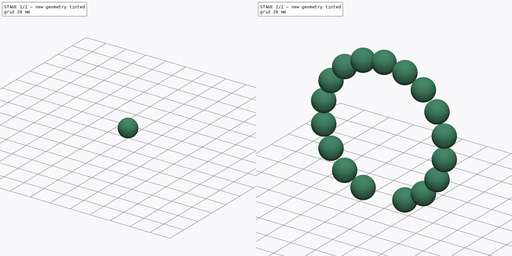
[diagram: build sequence overview — one tinted view per stage of 2, left to right]
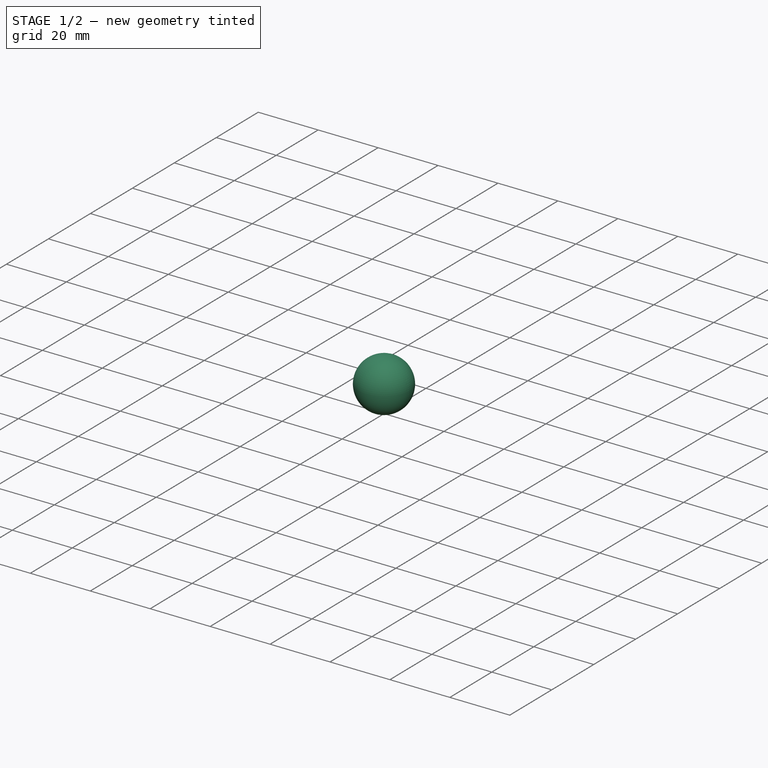
[diagram: stage 1 of 2 — iso view after this stage's code; geometry added in this stage tinted green]
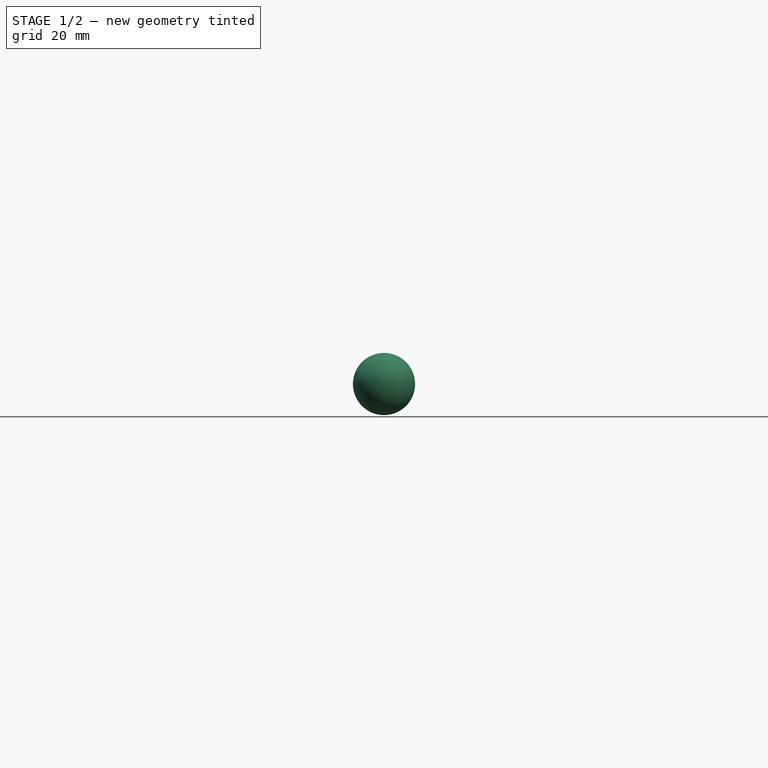
[diagram: stage 1 of 2 — front view after this stage's code; geometry added in this stage tinted green]
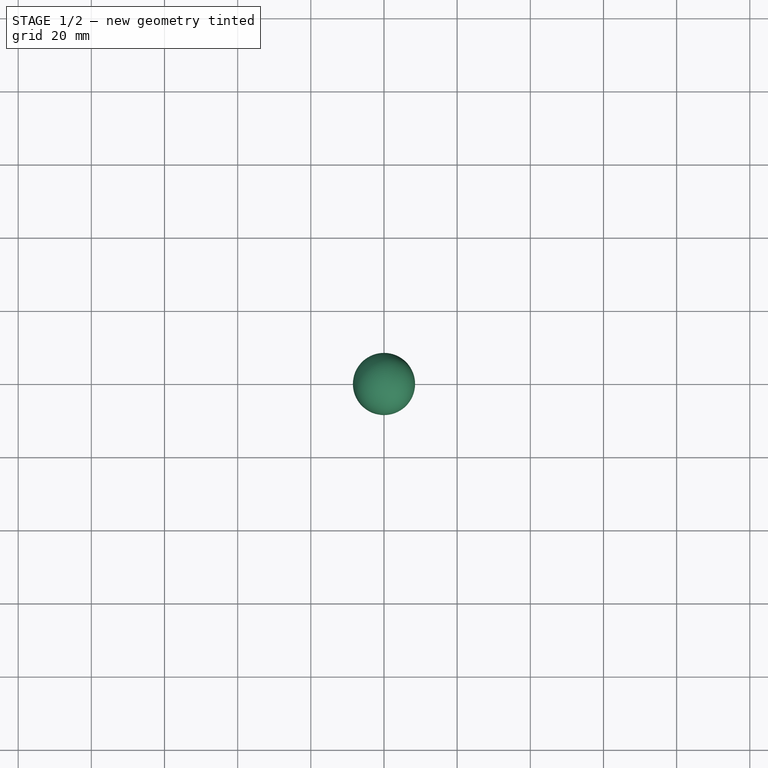
[diagram: stage 1 of 2 — top view after this stage's code; geometry added in this stage tinted green]
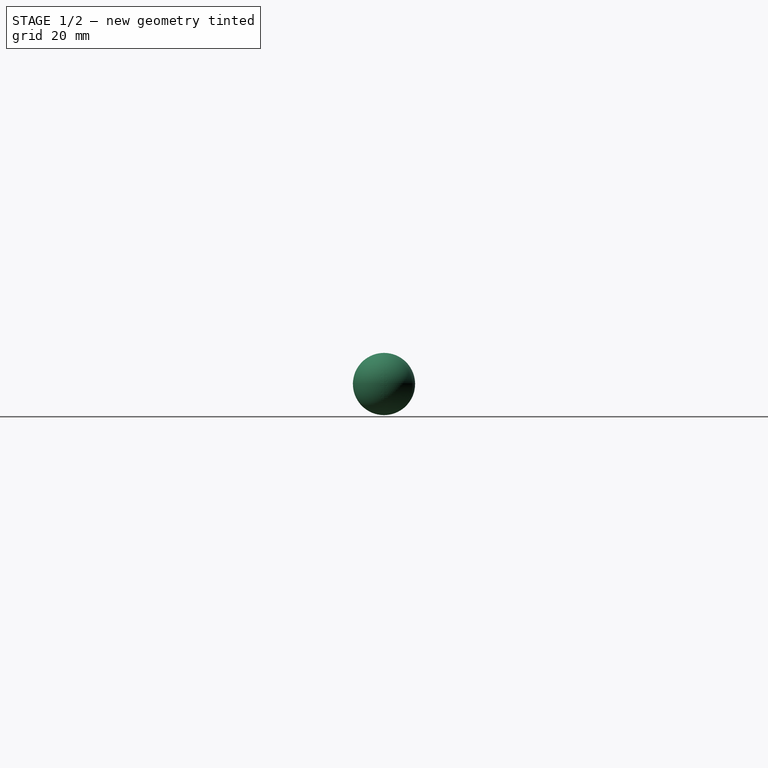
[diagram: stage 1 of 2 — right view after this stage's code; geometry added in this stage tinted green]
FCSTD DOCUMENT  (FreeCAD 0.21R33771 (Git))
Label: beerinwheel
License: All rights reserved
LicenseURL: http://en.wikipedia.org/wiki/All_rights_reserved
objects: Sketcher::SketchObject×2, Spreadsheet::Sheet×1, Part::Sphere×1, Part::FeaturePython×1, Part::Revolution×1, Part::Fillet×1
note: 6 computed .brp shape members not serialized (recipe doc carries the construction recipe); baked Part::Feature solids carry a one-line shape summary decoded from their .brp

FEATURE [Spreadsheet::Sheet] Spreadsheet  label="dimensions"
  cells = A2='OR; B2(OR)=60; A3='IR; B3(IR)=40; A4='Width; B4(width)=20; A5='wt; B5(wt)==shoulder; D5='wall thickness. The closest ; A6='c; B6(c)==(width - shoulder) / 2; D6='This computed from the parameters.  it represent the center of the circle of the pathway.; A7='pathradius; B7(pathradius)==(OR + IR) / 2; D7='computed; A8='shoulder; B8(shoulder)=2.5; A9='tolerance; B9(tolerance)=0.25; A10='BR; B10(BR)==c - tolerance; D10='computed.  Ball radius; A11='NB; B11(NB)==trunc(2 * pi * pathradius / (2 * BR + tolerance))
FEATURE [Sketcher::SketchObject] Sketch002  label="crosssection"
  FullyConstrained = true
  expr: Constraints[15] = <<dimensions>>.width
  expr: Constraints[16] = <<dimensions>>.OR
  expr: Constraints[17] = <<dimensions>>.IR
  expr: Constraints[30] = <<dimensions>>.c
  expr: Constraints[36] = <<dimensions>>.shoulder
  sketch-geometry (13):
    g0: LineSegment StartX=54.5069 StartY=10 StartZ=0 EndX=60 EndY=10 EndZ=0
    g1: LineSegment StartX=60 StartY=10 StartZ=0 EndX=60 EndY=-10 EndZ=0
    g2: LineSegment StartX=60 StartY=-10 StartZ=0 EndX=54.5069 EndY=-10 EndZ=0
    g3: GeomPoint X=57.2535 Y=0 Z=0
    g4: LineSegment StartX=40 StartY=-10 StartZ=0 EndX=40 EndY=10 EndZ=0
    g5: LineSegment StartX=40 StartY=10 StartZ=0 EndX=45.4931 EndY=10 EndZ=0
    g6: LineSegment StartX=45.4931 StartY=-10 StartZ=0 EndX=40 EndY=-10 EndZ=0
    g7: GeomPoint X=42.7465 Y=0 Z=0
    g8: LineSegment StartX=45.4931 StartY=10 StartZ=0 EndX=45.4931 EndY=7.5 EndZ=0
    g9: LineSegment StartX=45.4931 StartY=-10 StartZ=0 EndX=45.4931 EndY=-7.5 EndZ=0
    g10: LineSegment StartX=54.5069 StartY=10 StartZ=0 EndX=54.5069 EndY=7.5 EndZ=0
    g11: LineSegment StartX=54.5069 StartY=-10 StartZ=0 EndX=54.5069 EndY=-7.5 EndZ=0
    g12: Circle CenterX=50 CenterY=0 CenterZ=0 NormalX=0 NormalY=0 NormalZ=1 AngleXU=0 Radius=8.75
  constraints (37):
    c: Coincident(g0,g1)
    c: Coincident(g1,g2)
    c: Horizontal(g0)
    c: Horizontal(g2)
    c: Vertical(g1)
    c: Symmetric(g0,g2,g3)
    c: PointOnObject(g3,g-1)
    c: Coincident(g4,g5)
    c: Coincident(g6,g4)
    c: Horizontal(g5)
    c: Horizontal(g6)
    c: Vertical(g4)
    c: Symmetric(g5,g4,g7)
    c: PointOnObject(g7,g-1)
    c: Equal(g5,g0)
    c: DistanceY(g1,g1) = 20
    c: DistanceX(g1) = 60
    c: DistanceX(g4) = 40
    c: Coincident(g8,g5)
    c: Vertical(g8)
    c: Coincident(g9,g6)
    c: Vertical(g9)
    c: Coincident(g10,g0)
    c: Vertical(g10)
    c: Coincident(g11,g2)
    c: Vertical(g11)
    c: Equal(g4,g1)
    c: Equal(g5,g6)
    c: Equal(g2,g0)
    c: PointOnObject(g12,g-1)
    c: Radius(g12) = 8.75
    c: PointOnObject(g9,g12)
    c: PointOnObject(g11,g12)
    c: Equal(g11,g9)
    c: Equal(g9,g8)
    c: Equal(g8,g10)
    c: DistanceY(g11,g11) = 2.5
FEATURE [Part::Sphere] Sphere
  Angle1 = -90
  Angle2 = 90
  Angle3 = 360
  AttacherType = Attacher::AttachEngine3D
  Placement = pos=(0,0,-50) rot=(0,0,1;0rad)
  Radius = 8.5
  expr: .Placement.Base.x = 0
  expr: .Placement.Base.z = -<<dimensions>>.pathradius
  expr: Radius = <<dimensions>>.BR
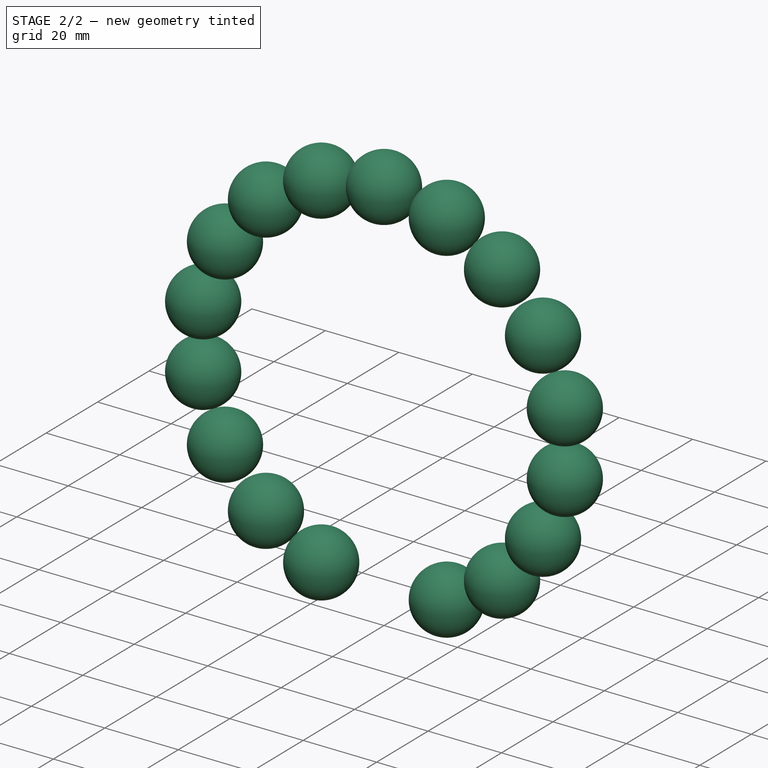
[diagram: stage 2 of 2 — iso view after this stage's code; geometry added in this stage tinted green]
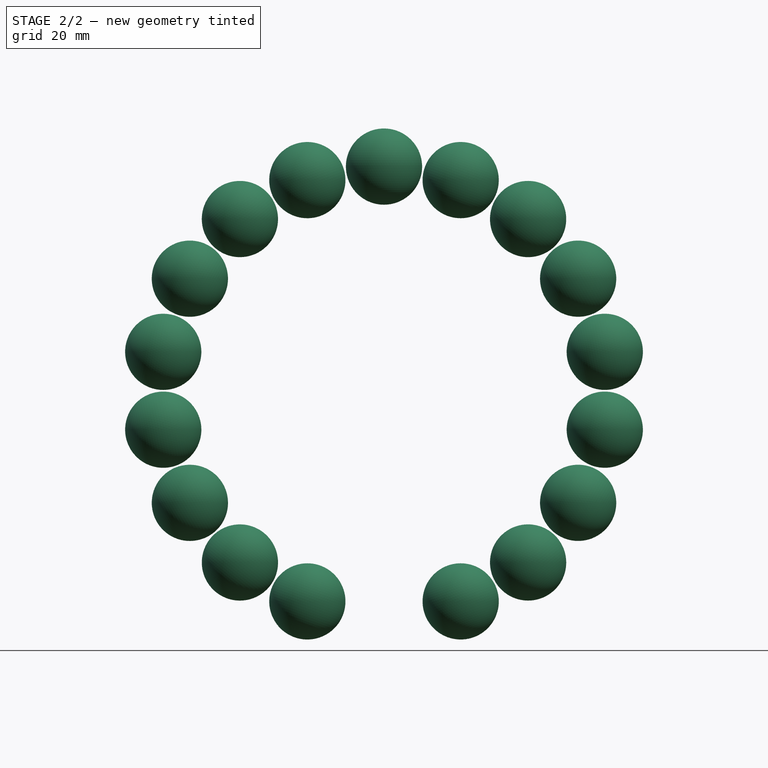
[diagram: stage 2 of 2 — front view after this stage's code; geometry added in this stage tinted green]
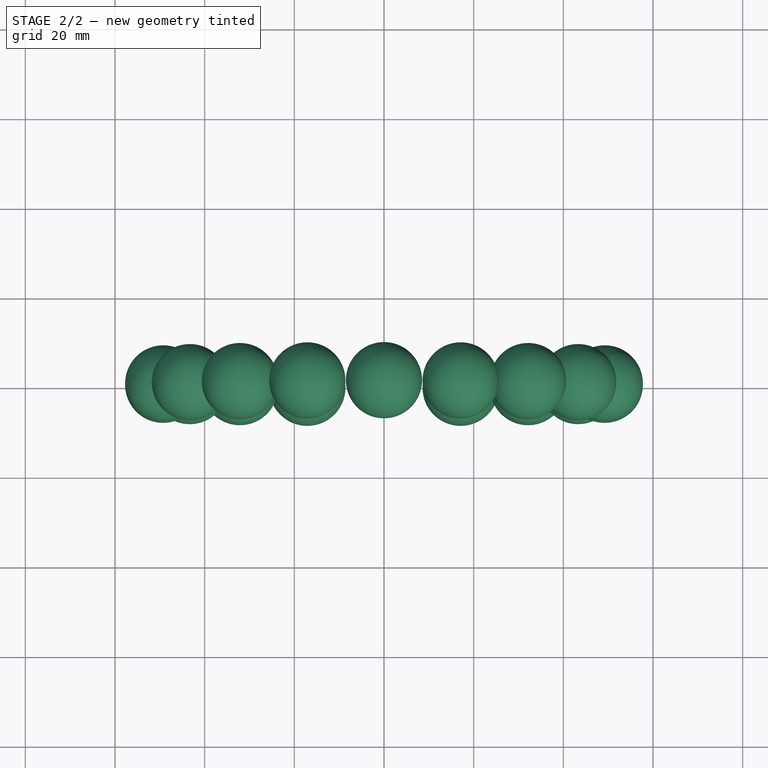
[diagram: stage 2 of 2 — top view after this stage's code; geometry added in this stage tinted green]
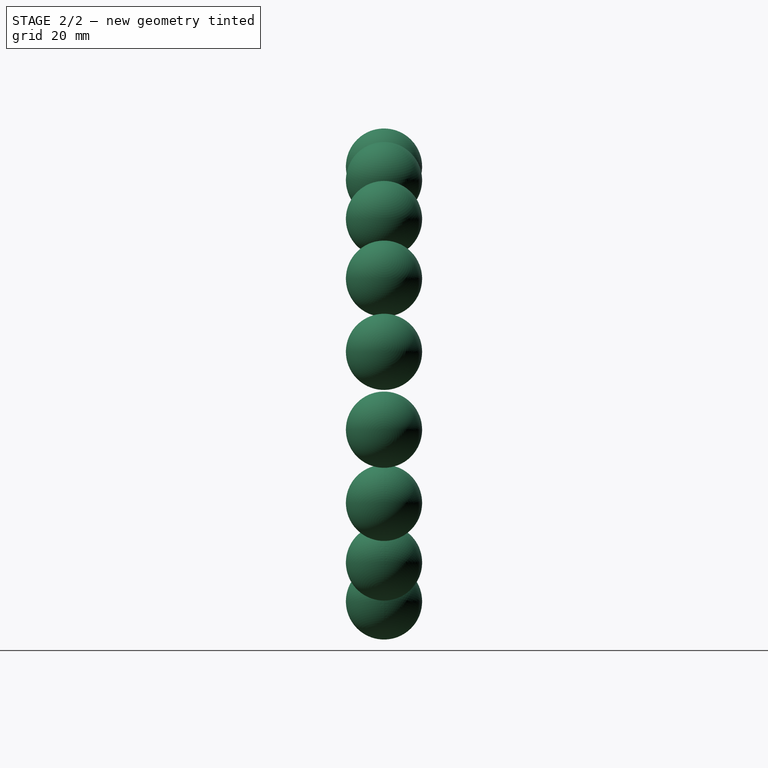
[diagram: stage 2 of 2 — right view after this stage's code; geometry added in this stage tinted green]
FEATURE [Part::FeaturePython] Array  label="balls"  # Draft array (typed FeaturePython)
  AlwaysSyncPlacement = false
  Angle = 360
  ArrayType = 1
  Axis = (0,1,0)
  Base = -> Sphere
  Center = (0,1,0)
  Count = 18
  ExpandArray = false
  Fuse = true
  IntervalAxis = (0,0,0)
  IntervalX = (50,0,0)
  IntervalY = (0,50,0)
  IntervalZ = (0,0,50)
  NumberCircles = 3
  NumberPolar = 18
  NumberX = 2
  NumberY = 2
  NumberZ = 1
  PlacementList = 18 placements: [(0,0,-50),(-17.101,1.11022e-16,-46.9846),(-32.1394,0,-38.3022),(-43.3013,0,-25),(-49.2404,1.11022e-16,-8.68241),(-49.2404,0,8.68241),(-43.3013,0,25),(-32.1394,1.11022e-16,38.3022),(-17.101,1.11022e-16,46.9846),(-6.12323e-15,0,50),(17.101,1.11022e-16,46.9846),(32.1394,0,38.3022),(43.3013,1.11022e-16,25),(49.2404,0,8.68241),(49.2404,0,-8.68241),(43.3013,0,-25),(32.1394,1.11022e-16,-38.3022),+1 more]
  RadialDistance = 50
  ScaleList = (18) [(1,1,1),(1,1,1),(1,1,1),(1,1,1),(1,1,1),(1,1,1),(1,1,1),(1,1,1),(1,1,1),(1,1,1),(1,1,1),(1,1,1),(1,1,1),(1,1,1),(1,1,1),(1,1,1),(1,1,1),(1,1,1)]
  Symmetry = 1
  TangentialDistance = 25
  expr: NumberPolar = <<dimensions>>.NB
FEATURE [Sketcher::SketchObject] Sketch004  label="crosssection002"
  FullyConstrained = true
  expr: Constraints[15] = <<dimensions>>.width
  expr: Constraints[16] = <<dimensions>>.OR
  expr: Constraints[17] = <<dimensions>>.IR
  expr: Constraints[30] = <<dimensions>>.width / 2 - <<dimensions>>.shoulder / 2
  expr: Constraints[33] = <<dimensions>>.shoulder
  sketch-geometry (14):
    g0: LineSegment StartX=54.5069 StartY=10 StartZ=0 EndX=60 EndY=10 EndZ=0
    g1: LineSegment StartX=60 StartY=10 StartZ=0 EndX=60 EndY=-10 EndZ=0
    g2: LineSegment StartX=60 StartY=-10 StartZ=0 EndX=54.5069 EndY=-10 EndZ=0
    g3: GeomPoint X=57.2535 Y=0 Z=0
    g4: LineSegment StartX=40 StartY=-10 StartZ=0 EndX=40 EndY=10 EndZ=0
    g5: LineSegment StartX=40 StartY=10 StartZ=0 EndX=45.4931 EndY=10 EndZ=0
    g6: LineSegment StartX=45.4931 StartY=-10 StartZ=0 EndX=40 EndY=-10 EndZ=0
    g7: GeomPoint X=42.7465 Y=0 Z=0
    g8: LineSegment StartX=45.4931 StartY=10 StartZ=0 EndX=45.4931 EndY=7.5 EndZ=0
    g9: LineSegment StartX=45.4931 StartY=-10 StartZ=0 EndX=45.4931 EndY=-7.5 EndZ=0
    g10: LineSegment StartX=54.5069 StartY=10 StartZ=0 EndX=54.5069 EndY=7.5 EndZ=0
    g11: LineSegment StartX=54.5069 StartY=-10 StartZ=0 EndX=54.5069 EndY=-7.5 EndZ=0
    g12: ArcOfCircle CenterX=50 CenterY=0 CenterZ=0 NormalX=0 NormalY=0 NormalZ=1 AngleXU=0 Radius=8.75 StartAngle=2.1119 EndAngle=4.17129
    g13: ArcOfCircle CenterX=50 CenterY=0 CenterZ=0 NormalX=0 NormalY=0 NormalZ=1 AngleXU=0 Radius=8.75 StartAngle=5.25349 EndAngle=7.31288
  constraints (40):
    c: Coincident(g0,g1)
    c: Coincident(g1,g2)
    c: Horizontal(g0)
    c: Horizontal(g2)
    c: Vertical(g1)
    c: Symmetric(g0,g2,g3)
    c: PointOnObject(g3,g-1)
    c: Coincident(g4,g5)
    c: Coincident(g6,g4)
    c: Horizontal(g5)
    c: Horizontal(g6)
    c: Vertical(g4)
    c: Symmetric(g5,g4,g7)
    c: PointOnObject(g7,g-1)
    c: Equal(g5,g0)
    c: DistanceY(g1,g1) = 20
    c: DistanceX(g1) = 60
    c: DistanceX(g4) = 40
    c: Coincident(g8,g5)
    c: Vertical(g8)
    c: Coincident(g9,g6)
    c: Vertical(g9)
    c: Coincident(g10,g0)
    c: Vertical(g10)
    c: Coincident(g11,g2)
    c: Vertical(g11)
    c: Equal(g4,g1)
    c: Equal(g5,g6)
    c: Equal(g2,g0)
    c: PointOnObject(g12,g-1)
    c: Radius(g12) = 8.75
    c: Equal(g11,g9)
    c: Equal(g9,g8)
    c: DistanceY(g11,g11) = 2.5
    c: Coincident(g13,g10)
    c: Coincident(g12,g8)
    c: Equal(g12,g13)
    c: PointOnObject(g12,g9)
    c: Coincident(g13,g11)
    c: Coincident(g12,g13)
FEATURE [Part::Revolution] Revolve
  Angle = 360
  Axis = (0,1,0)
  Base = (0,0,0)
  FaceMakerClass = Part::FaceMakerBullseye
  Solid = false
  Source = -> Sketch004
  Symmetric = false
  expr: .Placement.Base.z = 0
FEATURE [Part::Fillet] Fillet  label="ring"
  Base = -> Revolve
  Edges = 8 edges r=0.5: [Edge1,Edge2,Edge3,Edge5,Edge11,Edge12,Edge13,Edge15]
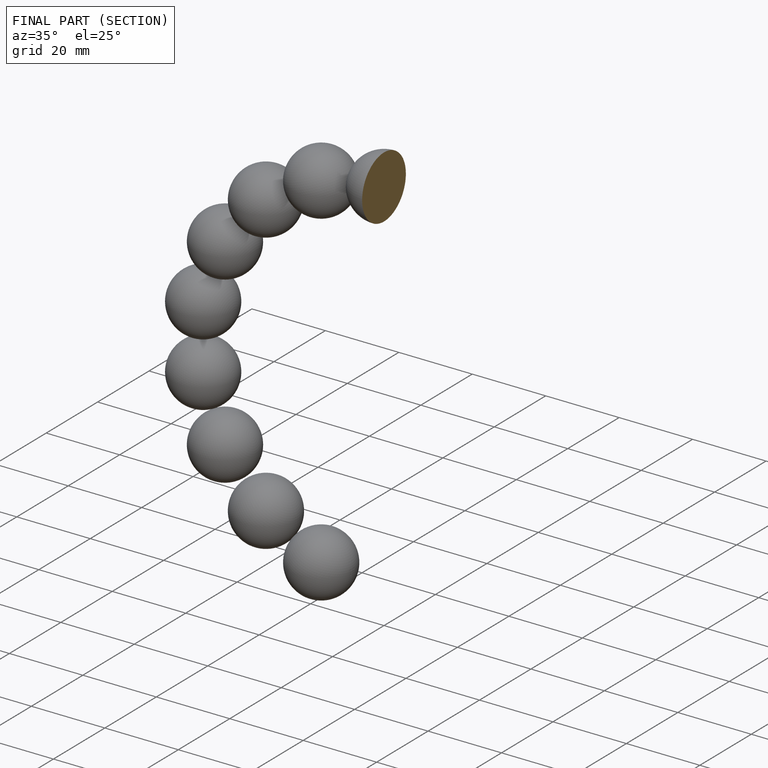
[diagram: finished part — half-section view (interior)]
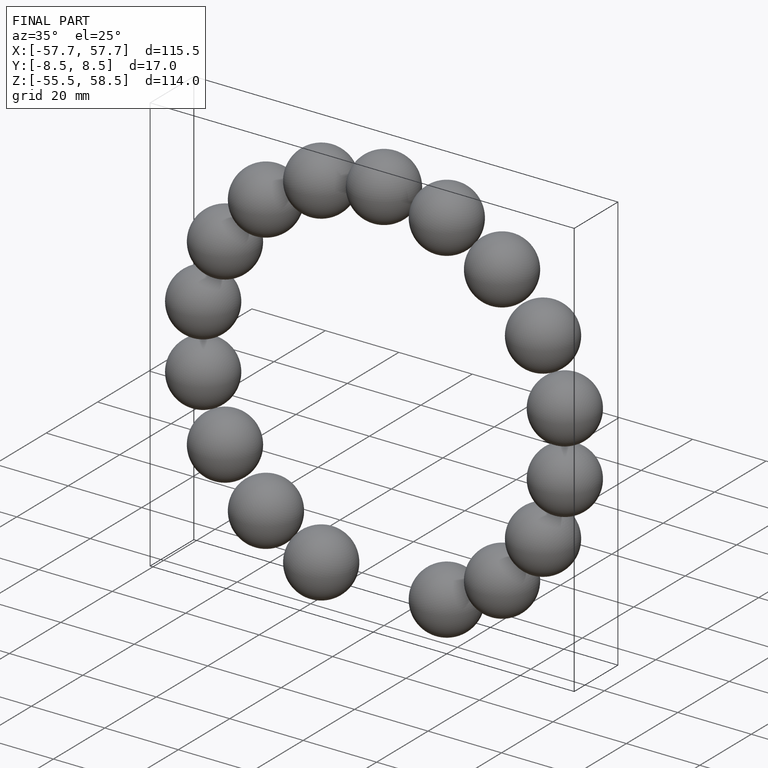
[diagram: finished part — iso view with bounding-box wireframe]
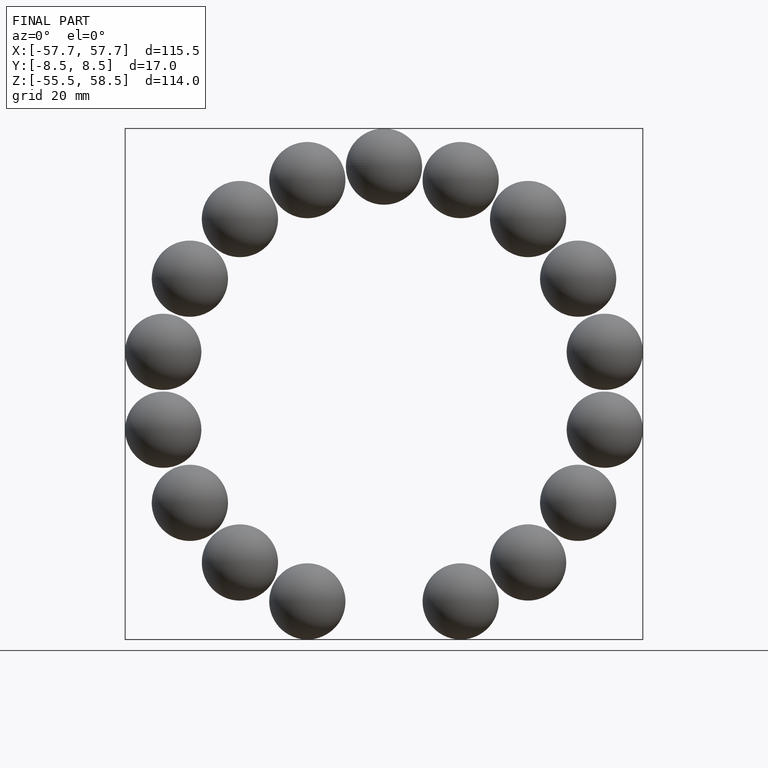
[diagram: finished part — front view with bounding-box wireframe]
